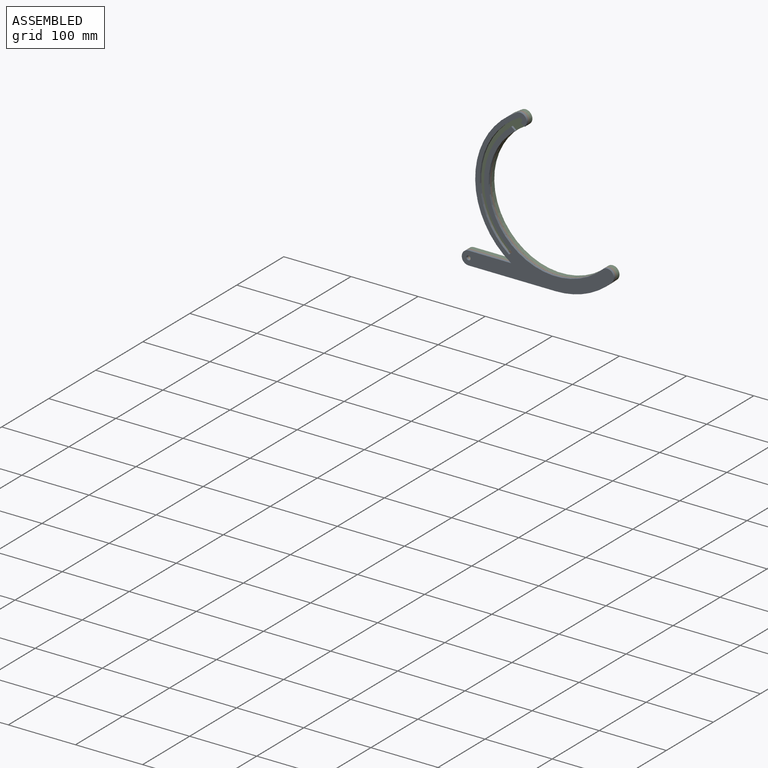
[diagram: assembled view]
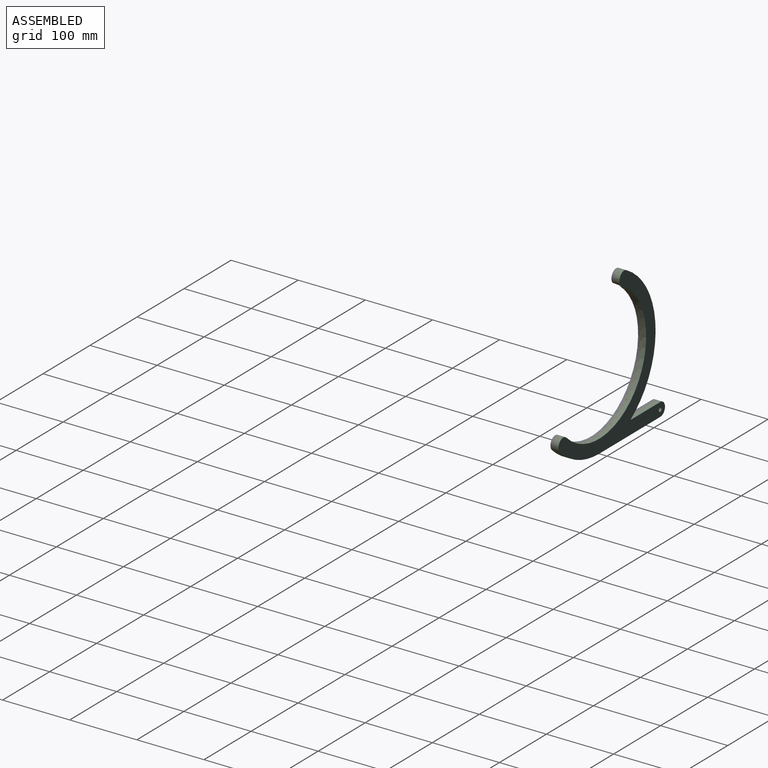
[diagram: assembled view, second angle]
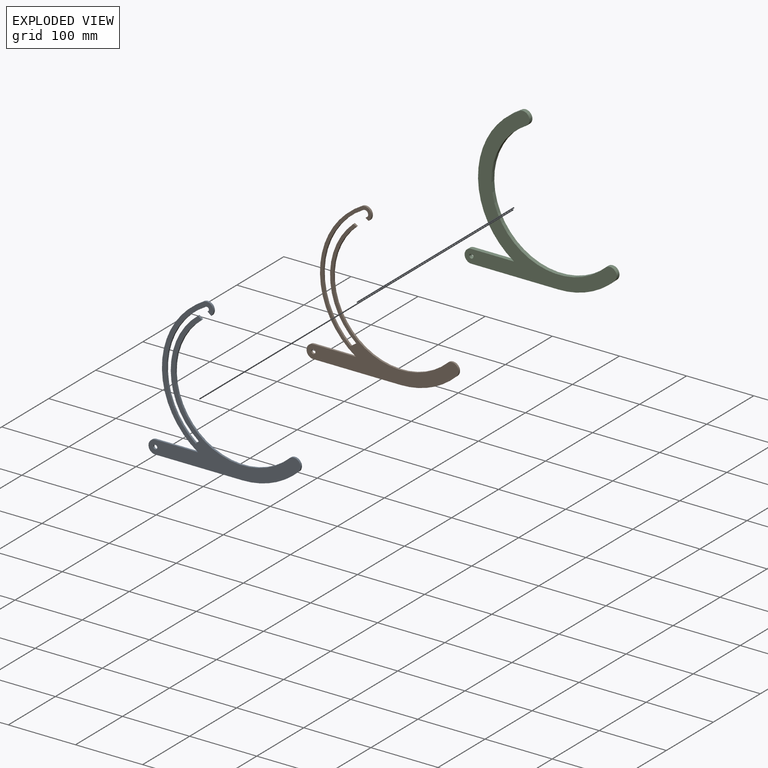
[diagram: exploded view]
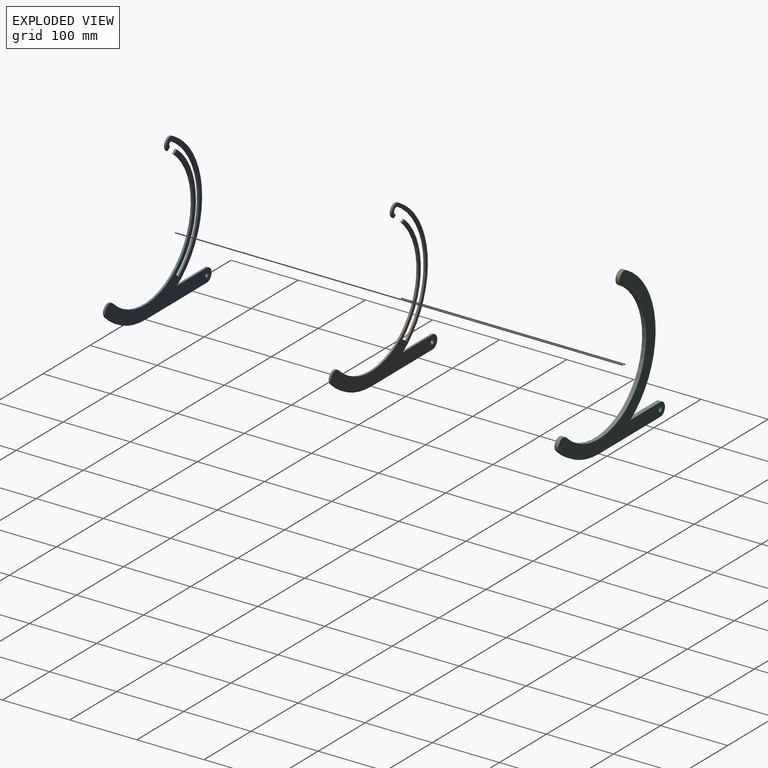
[diagram: exploded view, second angle]
ASSEMBLY  parts=3 mates=7
PART A: 18 faces, bbox 229.5x3x226.3 mm
  f0: plane 5.81x4.32mm, normal (-0.6,0,-0.8), area 21.7mm2, adj f1,f15,f16,f17
  f1: cylinder r=10mm len=17.29mm, axis (0,1,0), area 86.8mm2, adj f0,f2,f16,f17
  f2: cylinder r=120mm len=205.03mm, axis (0,1,0), area 738.4mm2, adj f1,f3,f16,f17
  f3: plane 63.67x3mm, normal (0,0,1), area 191mm2, adj f2,f4,f16,f17
  f4: cylinder r=10mm len=20mm, axis (0,1,0), area 94.2mm2, adj f3,f5,f16,f17
  f5: plane 130x3mm, normal (0,0,-1), area 390mm2, adj f4,f6,f16,f17
  f6: cylinder r=120mm len=83.5mm, axis (0,1,0), area 277.1mm2, adj f5,f7,f16,f17
  f7: extruded ~17.18x16.95mm, area 94.2mm2, adj f6,f8,f16,f17
  f8: cylinder r=100mm len=179.56mm, axis (0,1,0), area 978.1mm2, adj f7,f9,f16,f17
  f9: plane 5.49x4.47mm, normal (0.63,0,0.78), area 21.3mm2, adj f8,f10,f16,f17
  f10: cylinder r=106.9mm len=168.9mm, axis (0,1,0), area 584.2mm2, adj f9,f11,f16,f17
  f11: plane 4.53x4.33mm, normal (-0.69,0,0.72), area 18.8mm2, adj f10,f12,f16,f17
  f12: cylinder r=113.1mm len=188.19mm, axis (0,1,0), area 670mm2, adj f11,f13,f16,f17
  f13: cylinder r=3.1mm len=5.81mm, axis (0,1,0), area 29.2mm2, adj f12,f15,f16,f17
  f14: cylinder r=3.09mm len=6.18mm, axis (0,1,0), area 58.2mm2, adj f16,f17
  f15: cylinder r=106.9mm len=3mm, axis (0,1,0), area 1.6mm2, adj f0,f13,f16,f17
  f16: plane 229.46x226.28mm, normal (0,-1,0), area 8153.5mm2, adj f0,f1,f2,f3,f4,f5,f6,f7
  f17: plane 229.46x226.28mm, normal (0,1,0), area 8153.5mm2, adj f0,f1,f2,f3,f4,f5,f6,f7
PART B: 18 faces, bbox 233.2x3x227.6 mm
  f0: extruded ~9.44x7.3mm, area 47.1mm2, adj f1,f15,f16,f17
  f1: cylinder r=105mm len=3mm, axis (0,1,0), area 4.7mm2, adj f0,f2,f16,f17
  f2: plane 4.62x3.16mm, normal (-0.56,0,-0.83), area 16.8mm2, adj f1,f3,f16,f17
  f3: cylinder r=10mm len=18.34mm, axis (0,1,0), area 91.1mm2, adj f2,f4,f16,f17
  f4: cylinder r=120mm len=204.75mm, axis (0,1,0), area 738.4mm2, adj f3,f5,f16,f17
  f5: plane 63.65x3mm, normal (0.03,0,1), area 191mm2, adj f4,f6,f16,f17
  f6: extruded ~19.99x10.25mm, area 94.2mm2, adj f5,f7,f16,f17
  f7: plane 129.96x3.34mm, normal (-0.03,0,-1), area 390mm2, adj f6,f8,f16,f17
  f8: cylinder r=120mm len=84.34mm, axis (0,1,0), area 277.1mm2, adj f7,f9,f16,f17
  f9: extruded ~17.36x16.77mm, area 94.2mm2, adj f8,f10,f16,f17
  f10: cylinder r=100mm len=177.21mm, axis (0,1,0), area 959mm2, adj f9,f11,f16,f17
  f11: plane 4.61x3mm, normal (0.5,0,0.87), area 16mm2, adj f10,f12,f16,f17
  f12: cylinder r=105mm len=159.91mm, axis (0,1,0), area 545.3mm2, adj f11,f13,f16,f17
  f13: plane 8.68x5.7mm, normal (-0.55,0,0.84), area 31.1mm2, adj f12,f15,f16,f17
  f14: cylinder r=3.1mm len=6.2mm, axis (0,1,0), area 58.4mm2, adj f16,f17
  f15: cylinder r=115mm len=187.79mm, axis (0,1,0), area 666.9mm2, adj f0,f13,f16,f17
  f16: plane 233.22x227.62mm, normal (0,-1,0), area 7344.9mm2, adj f0,f1,f2,f3,f4,f5,f6,f7
  f17: plane 233.22x227.62mm, normal (0,1,0), area 7344.9mm2, adj f0,f1,f2,f3,f4,f5,f6,f7
PART C: 11 faces, bbox 226.9x6x229.9 mm
  f0: cylinder r=120mm len=204.92mm, axis (0,1,0), area 1476.8mm2, adj f1,f8,f9,f10
  f1: plane 63.66x6mm, normal (0.01,0,1), area 382mm2, adj f0,f2,f9,f10
  f2: cylinder r=10mm len=20mm, axis (0,1,0), area 188.5mm2, adj f1,f3,f9,f10
  f3: plane 129.99x6mm, normal (-0.01,0,-1), area 780mm2, adj f2,f4,f9,f10
  f4: cylinder r=120mm len=83.9mm, axis (0,1,0), area 554.1mm2, adj f3,f5,f9,f10
  f5: cylinder r=10mm len=17.27mm, axis (0,1,0), area 188.5mm2, adj f4,f6,f9,f10
  f6: cylinder r=100mm len=188.1mm, axis (0,1,0), area 2043.8mm2, adj f5,f8,f9,f10
  f7: cylinder r=3.1mm len=6.2mm, axis (0,1,0), area 116.9mm2, adj f9,f10
  f8: extruded ~18.8x14.73mm, area 188.5mm2, adj f0,f6,f9,f10
  f9: plane 229.87x226.9mm, normal (0,-1,0), area 9634.7mm2, adj f0,f1,f2,f3,f4,f5,f6,f7
  f10: plane 229.87x226.9mm, normal (0,1,0), area 9634.7mm2, adj f0,f1,f2,f3,f4,f5,f6,f7
PLACE A t=(147.58,-19.03,-50.06)mm
PLACE B rot(axis=(0,-1,0),1.5deg) t=(1.65,-16.03,-29.63)mm
PLACE C rot(axis=(0,-1,0),0.7deg) t=(-140.88,-10.03,-11.11)mm
MATE slider A.f4 <-> C.f2  axis (0,1,0) through (-99.37,-20.53,-132.69)mm
MATE planar C.f3 <-> B.f7  axis (0,0,-1) through (-34.37,-13.03,-142.69)mm
MATE planar B.f16 <-> A.f17  axis (0,-1,0) through (-15.34,-19.03,-93.1)mm
MATE planar C.f9 <-> B.f17  axis (0,-1,0) through (-25.98,-16.03,-73.07)mm
MATE planar C.f3 <-> A.f5  axis (0,0,-1) through (-34.37,-16.03,-142.69)mm
MATE planar B.f7 <-> A.f5  axis (0,0,-1) through (-34.37,-17.53,-142.69)mm
MATE slider C.f2 <-> B.f14  axis (0,1,0) through (-99.37,-10.03,-132.69)mm
